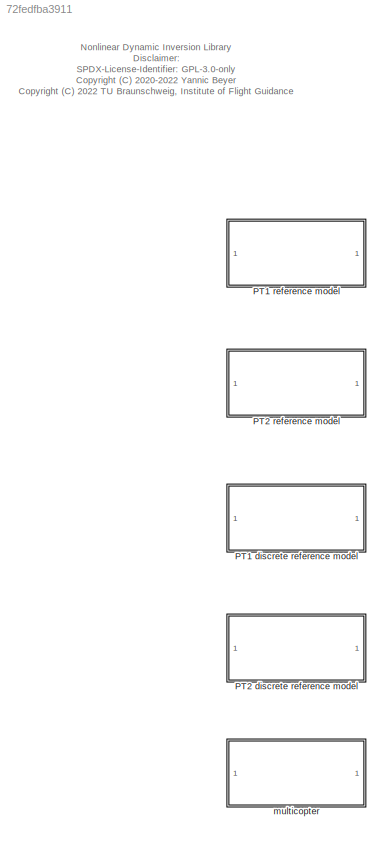
MODEL slx_72fedfba3911
KIND library
CONFIG AbsTol = auto
CONFIG EnableMultiTasking = off
CONFIG FixedStep = auto
CONFIG MaxStep = auto
CONFIG MinStep = auto
CONFIG RelTol = 1e-3
CONFIG SampleTimeConstraint = Unconstrained
CONFIG Solver = VariableStepAuto
CONFIG SolverName = VariableStepAuto
CONFIG StartTime = 0.0
CONFIG StopTime = 10.0
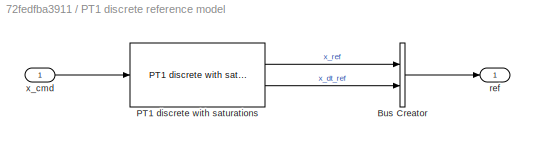
BLOCK [SubSystem] PT1 discrete reference model
  Ports = [1, 1]
  RequestExecContextInheritance = off
BLOCK [BusCreator] PT1 discrete reference model/Bus Creator
  DisplayOption = bar
  InheritFromInputs = on
  Inputs = 2
  Ports = [2, 1]
BLOCK [Reference] PT1 discrete reference model/PT1 discrete with saturations  REF=filters_lib/PT1 discrete with saturations  (lib defined in slx_a584fcc4ebc5)
  Ports = [1, 2]
  SourceBlock = filters_lib/PT1 discrete with saturations
  SourceProductName = LADAC
BLOCK [Outport] PT1 discrete reference model/ref
  IconDisplay = Port number
BLOCK [Inport] PT1 discrete reference model/x_cmd
  IconDisplay = Port number
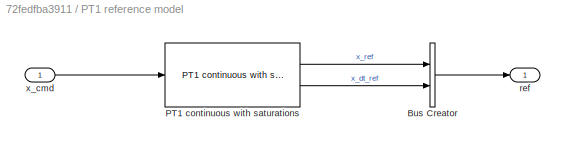
BLOCK [SubSystem] PT1 reference model
  Ports = [1, 1]
  RequestExecContextInheritance = off
BLOCK [BusCreator] PT1 reference model/Bus Creator
  DisplayOption = bar
  InheritFromInputs = on
  Inputs = 2
  Ports = [2, 1]
BLOCK [Reference] PT1 reference model/PT1 continuous with saturations  REF=filters_lib/PT1 continuous with saturations  (lib defined in slx_a584fcc4ebc5)
  Ports = [1, 2]
  SourceBlock = filters_lib/PT1 continuous with saturations
  SourceProductName = LADAC
BLOCK [Outport] PT1 reference model/ref
  IconDisplay = Port number
BLOCK [Inport] PT1 reference model/x_cmd
  IconDisplay = Port number
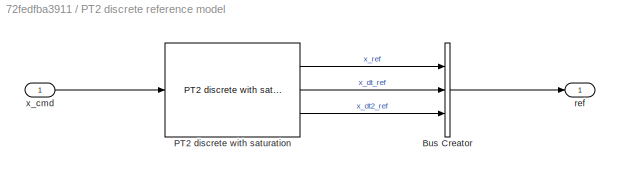
BLOCK [SubSystem] PT2 discrete reference model
  Ports = [1, 1]
  RequestExecContextInheritance = off
BLOCK [BusCreator] PT2 discrete reference model/Bus Creator
  DisplayOption = bar
  InheritFromInputs = on
  Inputs = 3
  Ports = [3, 1]
BLOCK [Reference] PT2 discrete reference model/PT2 discrete with saturation  REF=filters_lib/PT2 discrete with saturation  (lib defined in slx_a584fcc4ebc5)
  Ports = [1, 3]
  SourceBlock = filters_lib/PT2 discrete with saturation
  SourceProductName = LADAC
BLOCK [Outport] PT2 discrete reference model/ref
  IconDisplay = Port number
BLOCK [Inport] PT2 discrete reference model/x_cmd
  IconDisplay = Port number
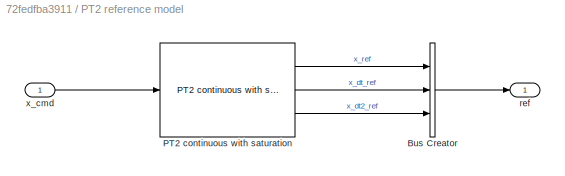
BLOCK [SubSystem] PT2 reference model
  Ports = [1, 1]
  RequestExecContextInheritance = off
BLOCK [BusCreator] PT2 reference model/Bus Creator
  DisplayOption = bar
  InheritFromInputs = on
  Inputs = 3
  Ports = [3, 1]
BLOCK [Reference] PT2 reference model/PT2 continuous with saturation  REF=filters_lib/PT2 continuous with saturation  (lib defined in slx_a584fcc4ebc5)
  Ports = [1, 3]
  SourceBlock = filters_lib/PT2 continuous with saturation
  SourceProductName = LADAC
BLOCK [Outport] PT2 reference model/ref
  IconDisplay = Port number
BLOCK [Inport] PT2 reference model/x_cmd
  IconDisplay = Port number
BLOCK [SubSystem] multicopter
  OpenFcn = multicopterNDI_lib
  Ports = []
  RequestExecContextInheritance = off
ANNOTATION (root): Nonlinear Dynamic Inversion Library Disclaimer: SPDX-License-Identifier: GPL-3.0-only <copyright redacted>
LINE PT1 discrete reference model/Bus Creator:1 -> PT1 discrete reference model/ref:1
LINE PT1 discrete reference model/PT1 discrete with saturations:1 -> PT1 discrete reference model/Bus Creator:1
LINE PT1 discrete reference model/PT1 discrete with saturations:2 -> PT1 discrete reference model/Bus Creator:2
LINE PT1 discrete reference model/x_cmd:1 -> PT1 discrete reference model/PT1 discrete with saturations:1
LINE PT1 reference model/Bus Creator:1 -> PT1 reference model/ref:1
LINE PT1 reference model/PT1 continuous with saturations:1 -> PT1 reference model/Bus Creator:1
LINE PT1 reference model/PT1 continuous with saturations:2 -> PT1 reference model/Bus Creator:2
LINE PT1 reference model/x_cmd:1 -> PT1 reference model/PT1 continuous with saturations:1
LINE PT2 discrete reference model/Bus Creator:1 -> PT2 discrete reference model/ref:1
LINE PT2 discrete reference model/PT2 discrete with saturation:1 -> PT2 discrete reference model/Bus Creator:1
LINE PT2 discrete reference model/PT2 discrete with saturation:2 -> PT2 discrete reference model/Bus Creator:2
LINE PT2 discrete reference model/PT2 discrete with saturation:3 -> PT2 discrete reference model/Bus Creator:3
LINE PT2 discrete reference model/x_cmd:1 -> PT2 discrete reference model/PT2 discrete with saturation:1
LINE PT2 reference model/Bus Creator:1 -> PT2 reference model/ref:1
LINE PT2 reference model/PT2 continuous with saturation:1 -> PT2 reference model/Bus Creator:1
LINE PT2 reference model/PT2 continuous with saturation:2 -> PT2 reference model/Bus Creator:2
LINE PT2 reference model/PT2 continuous with saturation:3 -> PT2 reference model/Bus Creator:3
LINE PT2 reference model/x_cmd:1 -> PT2 reference model/PT2 continuous with saturation:1
